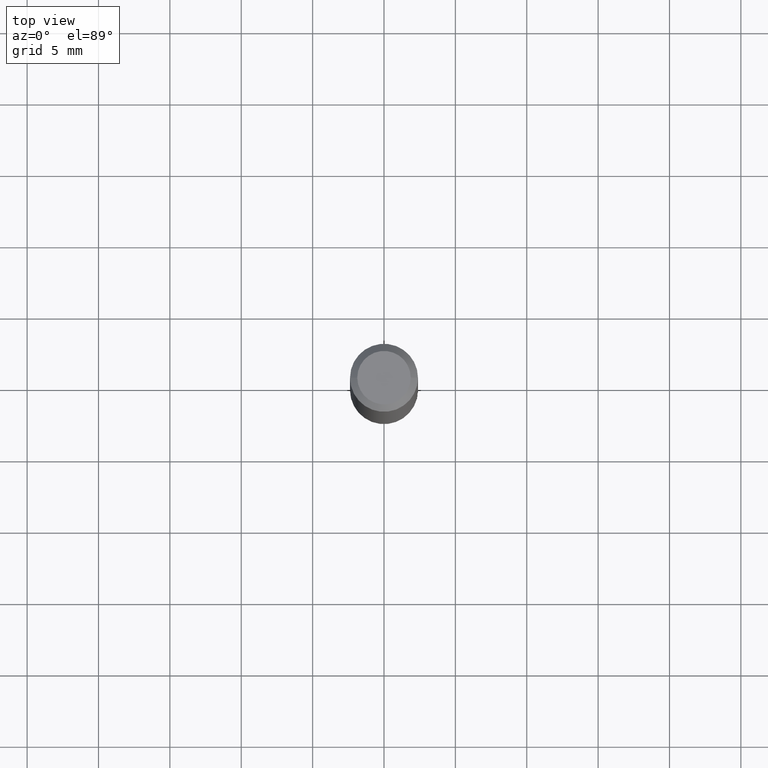
[diagram: clean part render]
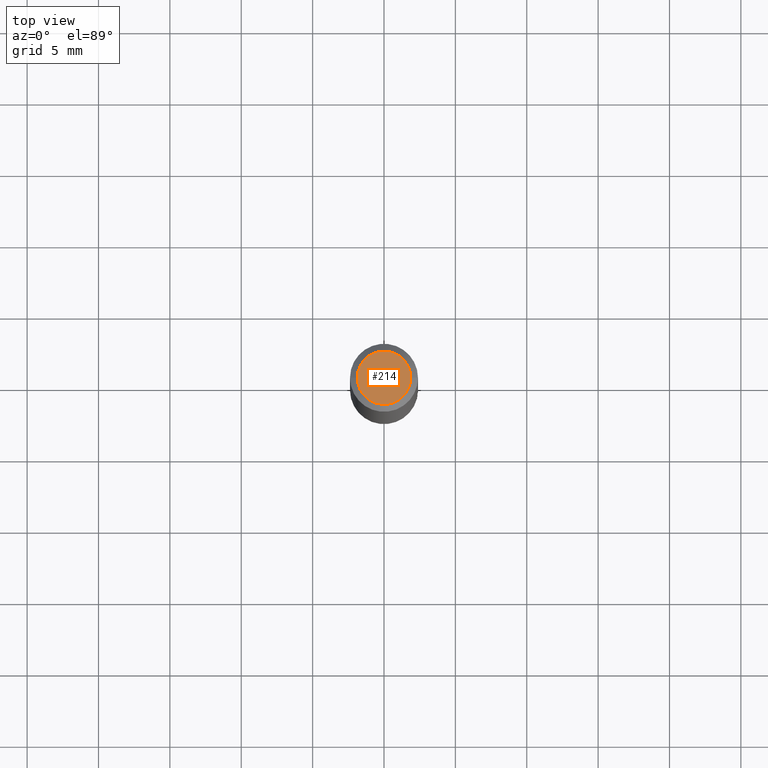
[diagram: same view with one face highlighted and labeled with its STEP entity id]
A machine part, top view. The second image highlights one B-rep face of the part: STEP entity #214.
In plain terms, the highlighted planar face has unit normal (0, -0, -1).
Its self-contained STEP definition (entity closure, byte-faithful):
#1 = AXIS2_PLACEMENT_3D ( 'NONE', #287, #105, #201 ) ;
#48 = DIRECTION ( 'NONE',  ( 1.000000000000000000, -6.982962677686265922E-15, 4.878439923190939118E-29 ) ) ;
#52 = EDGE_LOOP ( 'NONE', ( #284, #103 ) ) ;
#79 = DIRECTION ( 'NONE',  ( -2.445468806185136597E-29, 3.491481338843145583E-15, 1.000000000000000000 ) ) ;
#93 = CIRCLE ( 'NONE', #348, 0.07375000000000006550 ) ;
#103 = ORIENTED_EDGE ( 'NONE', *, *, #400, .T. ) ;
#105 = DIRECTION ( 'NONE',  ( 2.438088387897960049E-29, -3.491481338843145188E-15, -1.000000000000000000 ) ) ;
#122 = CARTESIAN_POINT ( 'NONE',  ( -0.07375000000000006550, 5.499083108677936415E-16, -2.134256245050577883E-17 ) ) ;
#141 = CIRCLE ( 'NONE', #365, 0.07375000000000006550 ) ;
#154 = DIRECTION ( 'NONE',  ( 1.000000000000000000, -6.982962677686265922E-15, 4.878439923190939118E-29 ) ) ;
#170 = PLANE ( 'NONE',  #1 ) ;
#181 = CARTESIAN_POINT ( 'NONE',  ( 5.219257071676098903E-46, -7.451715851902235727E-32, -2.134256245050205639E-17 ) ) ;
#201 = DIRECTION ( 'NONE',  ( -1.000000000000000000, 6.982962677686265922E-15, -4.876176775795935793E-29 ) ) ;
#207 = DIRECTION ( 'NONE',  ( -2.445468806185136597E-29, 3.491481338843145583E-15, 1.000000000000000000 ) ) ;
#214 = ADVANCED_FACE ( 'NONE', ( #417 ), #170, .F. ) ;
#228 = CARTESIAN_POINT ( 'NONE',  ( 0.07375000000000006550, -6.094815207017975989E-16, -2.134256245049812442E-17 ) ) ;
#230 = VERTEX_POINT ( 'NONE', #122 ) ;
#274 = CARTESIAN_POINT ( 'NONE',  ( 5.219257071676098903E-46, -7.451715851902235727E-32, -2.134256245050205639E-17 ) ) ;
#284 = ORIENTED_EDGE ( 'NONE', *, *, #385, .T. ) ;
#287 = CARTESIAN_POINT ( 'NONE',  ( 5.149934974793625841E-16, 0.07375000000000006550, -2.681680299649332462E-16 ) ) ;
#311 = VERTEX_POINT ( 'NONE', #228 ) ;
#348 = AXIS2_PLACEMENT_3D ( 'NONE', #274, #79, #48 ) ;
#365 = AXIS2_PLACEMENT_3D ( 'NONE', #181, #207, #154 ) ;
#385 = EDGE_CURVE ( 'NONE', #230, #311, #93, .T. ) ;
#400 = EDGE_CURVE ( 'NONE', #311, #230, #141, .T. ) ;
#417 = FACE_OUTER_BOUND ( 'NONE', #52, .T. ) ;